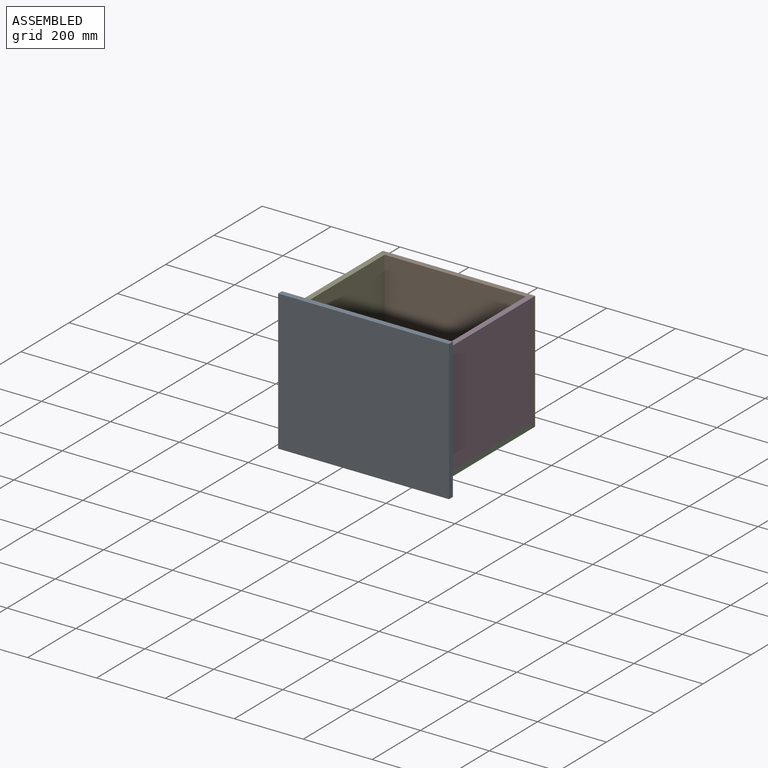
[diagram: assembled view]
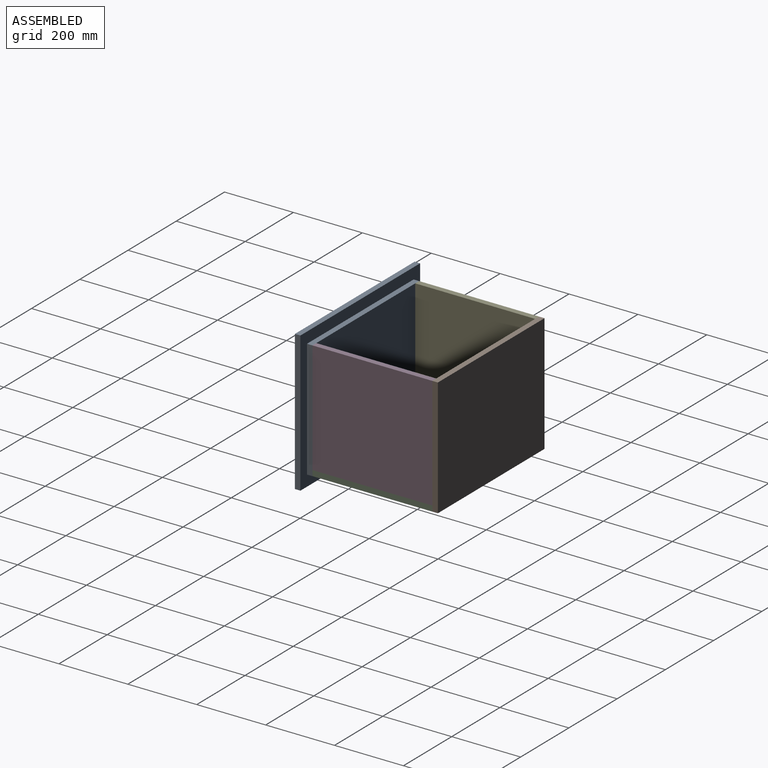
[diagram: assembled view, second angle]
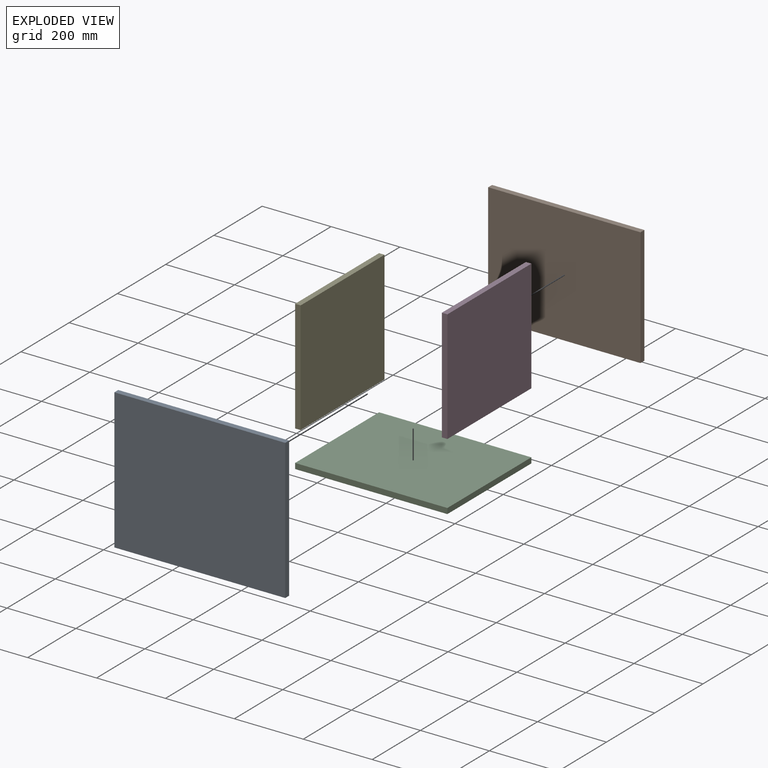
[diagram: exploded view]
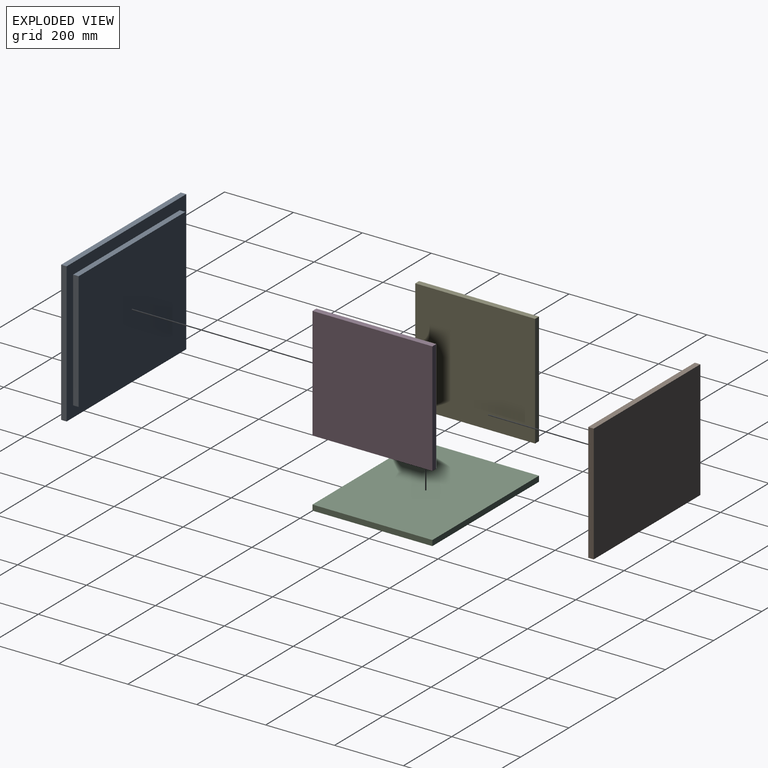
[diagram: exploded view, second angle]
ASSEMBLY  parts=5 mates=4
PART A: 11 faces, bbox 496x32x407 mm
  f0: plane 496x16mm, normal (0,0,1), area 7936mm2, adj f1,f3,f4,f5
  f1: plane 407x16mm, normal (-1,0,0), area 6512mm2, adj f0,f2,f4,f5
  f2: plane 496x16mm, normal (0,0,-1), area 7936mm2, adj f1,f3,f4,f5
  f3: plane 407x16mm, normal (1,0,0), area 6512mm2, adj f0,f2,f4,f5
  f4: plane 496x407mm, normal (0,-1,0), area 201872mm2, adj f0,f1,f2,f3
  f5: plane 496x407mm, normal (0,1,0), area 50266mm2, adj f0,f1,f2,f3,f6,f7,f8,f9
  f6: plane 442x16mm, normal (0,0,-1), area 7072mm2, adj f5,f7,f9,f10
  f7: plane 343x16mm, normal (-1,0,0), area 5488mm2, adj f5,f6,f8,f10
  f8: plane 442x16mm, normal (0,0,1), area 7072mm2, adj f5,f7,f9,f10
  f9: plane 343x16mm, normal (1,0,0), area 5488mm2, adj f5,f6,f8,f10
  f10: plane 442x343mm, normal (0,1,0), area 151606mm2, adj f6,f7,f8,f9
PART B: 6 faces, bbox 442x16x343 mm
  f0: plane 442x16mm, normal (0,0,1), area 7072mm2, adj f1,f3,f4,f5
  f1: plane 343x16mm, normal (1,0,0), area 5488mm2, adj f0,f2,f4,f5
  f2: plane 442x16mm, normal (0,0,-1), area 7072mm2, adj f1,f3,f4,f5
  f3: plane 343x16mm, normal (-1,0,0), area 5488mm2, adj f0,f2,f4,f5
  f4: plane 442x343mm, normal (0,1,0), area 151606mm2, adj f0,f1,f2,f3
  f5: plane 442x343mm, normal (0,-1,0), area 151606mm2, adj f0,f1,f2,f3
PART C: 6 faces, bbox 442x348x16 mm
  f0: plane 442x16mm, normal (0,-1,0), area 7072mm2, adj f1,f3,f4,f5
  f1: plane 348x16mm, normal (-1,0,0), area 5568mm2, adj f0,f2,f4,f5
  f2: plane 442x16mm, normal (0,1,0), area 7072mm2, adj f1,f3,f4,f5
  f3: plane 348x16mm, normal (1,0,0), area 5568mm2, adj f0,f2,f4,f5
  f4: plane 442x348mm, normal (0,0,1), area 153816mm2, adj f0,f1,f2,f3
  f5: plane 442x348mm, normal (0,0,-1), area 153816mm2, adj f0,f1,f2,f3
PART D: 6 faces, bbox 16x348x327 mm
  f0: plane 348x16mm, normal (0,0,1), area 5568mm2, adj f1,f3,f4,f5
  f1: plane 327x16mm, normal (0,1,0), area 5232mm2, adj f0,f2,f4,f5
  f2: plane 348x16mm, normal (0,0,-1), area 5568mm2, adj f1,f3,f4,f5
  f3: plane 327x16mm, normal (0,-1,0), area 5232mm2, adj f0,f2,f4,f5
  f4: plane 348x327mm, normal (-1,0,0), area 113796mm2, adj f0,f1,f2,f3
  f5: plane 348x327mm, normal (1,0,0), area 113796mm2, adj f0,f1,f2,f3
PART E: 6 faces, bbox 16x348x327 mm
  f0: plane 348x16mm, normal (0,0,1), area 5568mm2, adj f1,f3,f4,f5
  f1: plane 327x16mm, normal (0,1,0), area 5232mm2, adj f0,f2,f4,f5
  f2: plane 348x16mm, normal (0,0,-1), area 5568mm2, adj f1,f3,f4,f5
  f3: plane 327x16mm, normal (0,-1,0), area 5232mm2, adj f0,f2,f4,f5
  f4: plane 348x327mm, normal (1,0,0), area 113796mm2, adj f0,f1,f2,f3
  f5: plane 348x327mm, normal (-1,0,0), area 113796mm2, adj f0,f1,f2,f3
PLACE A t=(-204.53,-202.3,177.25)mm
PLACE B t=(-204.53,-202.3,177.25)mm
PLACE C t=(-204.53,-202.3,177.25)mm
PLACE D t=(-204.53,-202.3,177.25)mm
PLACE E t=(-204.53,-202.3,177.25)mm
MATE fastened D.f2 <-> C.f4  axis (0,0,-1) through (-239.53,-12.3,220.25)mm
MATE fastened C.f0 <-> A.f10  axis (0,-1,0) through (-452.53,-186.3,212.25)mm
MATE fastened E.f2 <-> C.f4  axis (0,0,-1) through (-665.53,-12.3,220.25)mm
MATE fastened B.f5 <-> C.f2  axis (0,-1,0) through (-452.53,161.7,375.75)mm
